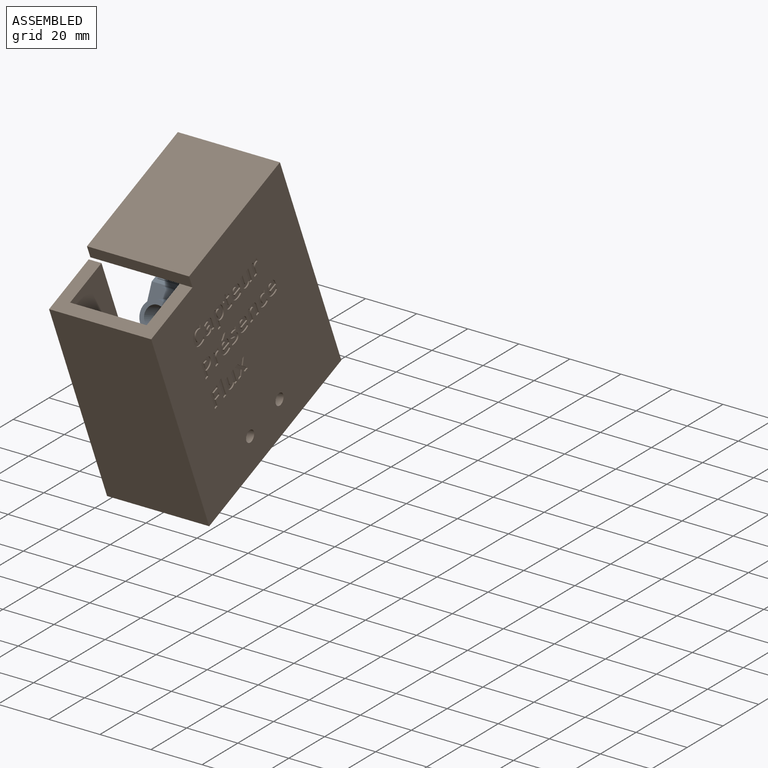
[diagram: assembled view]
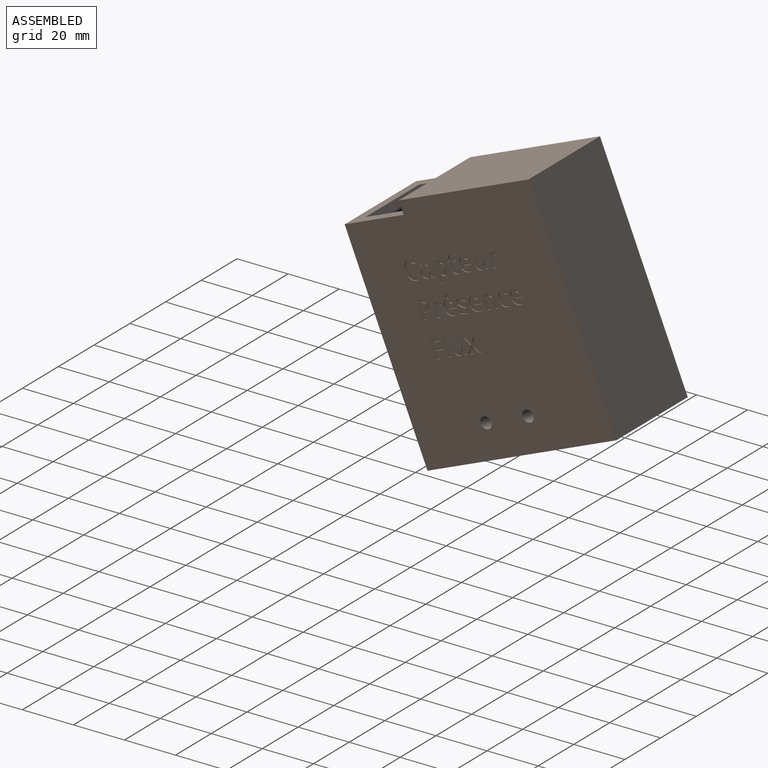
[diagram: assembled view, second angle]
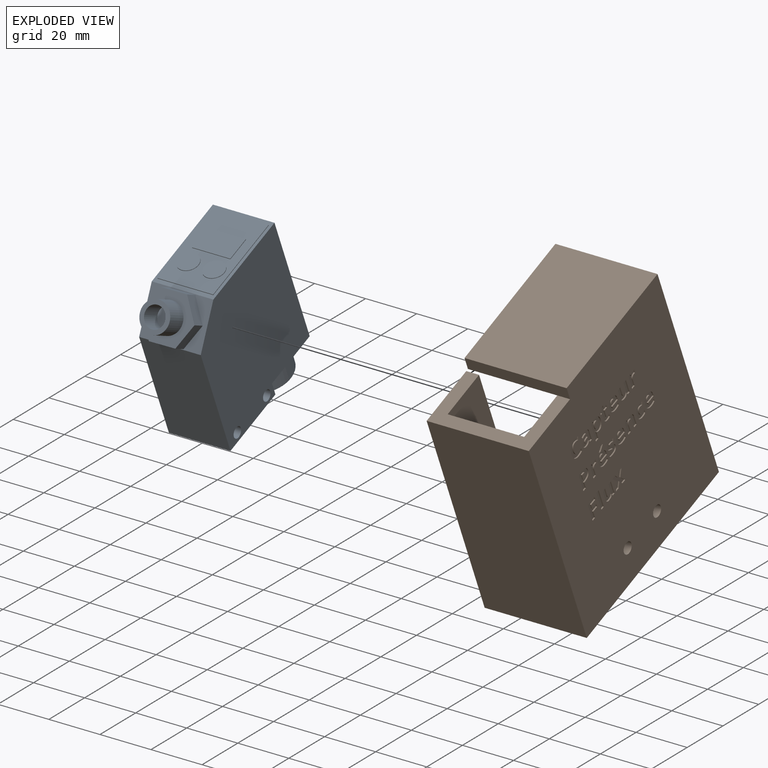
[diagram: exploded view]
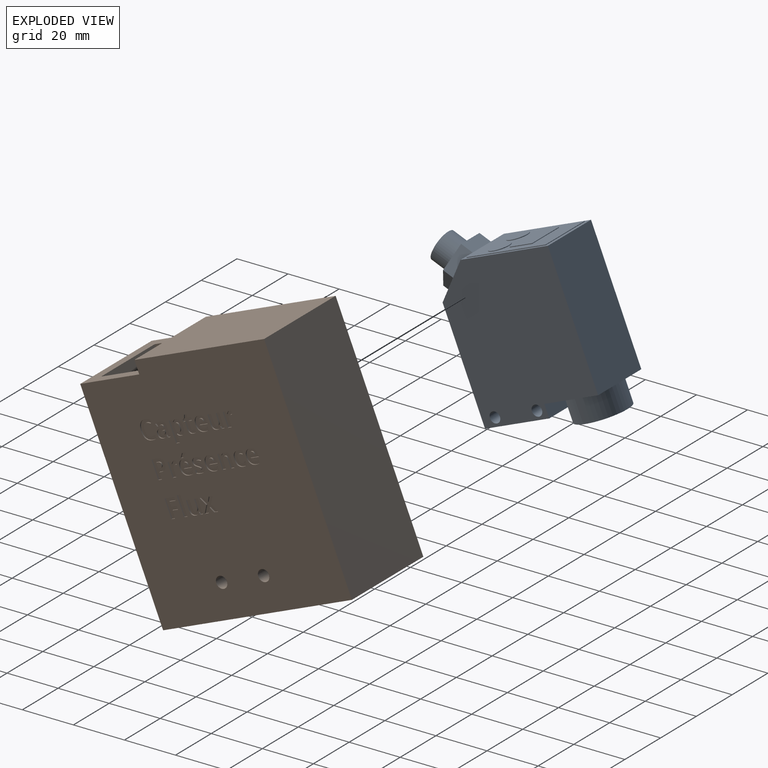
[diagram: exploded view, second angle]
ASSEMBLY  parts=2 mates=3
PART A: 40 faces, bbox 24.1x67.8x56.8 mm
  f0: plane 24.13x13mm, normal (0,-0.71,-0.71), area 166.1mm2, adj f1,f2,f7,f8,f29,f30,f31,f32
  f1: plane 37x24.13mm, normal (0,-1,0), area 160.9mm2, adj f0,f6,f7,f8,f16,f17,f18,f19
  f2: plane 43.57x24.13mm, normal (0,0,-1), area 1051.2mm2, adj f0,f3,f7,f8
  f3: plane 27.2x24.13mm, normal (0,1,0), area 656.3mm2, adj f2,f4,f7,f8
  f4: plane 24.13x5mm, normal (0,0,1), area 120.6mm2, adj f3,f5,f7,f8
  f5: plane 24.13x22.8mm, normal (0,1,0), area 223.3mm2, adj f4,f6,f7,f8,f9
  f6: plane 51.57x24.13mm, normal (0,0,1), area 1244.3mm2, adj f1,f5,f7,f8
  f7: plane 56.57x50mm, normal (1,0,0), area 2602.1mm2, adj f0,f1,f2,f3,f4,f5,f6,f13
  f8: plane 56.57x50mm, normal (-1,0,0), area 2602.1mm2, adj f0,f1,f2,f3,f4,f5,f6,f13
  f9: cylinder r=10.2mm len=20.4mm, axis (0,-1,0), area 602.4mm2, adj f5,f10
  f10: plane 20.4x20.4mm, normal (0,1,0), area 80.8mm2, adj f9,f11
  f11: cylinder r=8.85mm len=17.7mm, axis (0,1,0), area 278mm2, adj f10,f12
  f12: plane 17.7x17.7mm, normal (0,1,0), area 246.1mm2, adj f11
  f13: cylinder r=2.1mm len=24.13mm, axis (1,0,0), area 318.4mm2, adj f7,f8
  f14: cylinder r=2.1mm len=24.13mm, axis (1,0,0), area 318.4mm2, adj f7,f8
  f15: plane 33.5x21.85mm, normal (0,-1,0), area 488.8mm2, adj f16,f17,f18,f19,f21,f23,f25,f26
  f16: plane 21.85x0.25mm, normal (0,0,-1), area 5.5mm2, adj f1,f15,f17,f19
  f17: plane 33.5x0.25mm, normal (1,0,0), area 8.4mm2, adj f1,f15,f16,f18
  f18: plane 21.85x0.25mm, normal (0,0,1), area 5.5mm2, adj f1,f15,f17,f19
  f19: plane 33.5x0.25mm, normal (-1,0,0), area 8.4mm2, adj f1,f15,f16,f18
  f20: plane 8x8mm, normal (0,-1,0), area 50.3mm2, adj f21
  f21: cylinder r=4mm len=8mm, axis (0,1,0), area 6.3mm2, adj f15,f20
  f22: plane 8x8mm, normal (0,-1,0), area 50.3mm2, adj f23
  f23: cylinder r=4mm len=8mm, axis (0,1,0), area 6.3mm2, adj f15,f22
  f24: plane 15x9.5mm, normal (0,-1,0), area 142.5mm2, adj f25,f26,f27,f28
  f25: plane 9.5x0.25mm, normal (-1,0,0), area 2.4mm2, adj f15,f24,f26,f28
  f26: plane 15x0.25mm, normal (0,0,1), area 3.8mm2, adj f15,f24,f25,f27
  f27: plane 9.5x0.25mm, normal (1,0,0), area 2.4mm2, adj f15,f24,f26,f28
  f28: plane 15x0.25mm, normal (0,0,-1), area 3.8mm2, adj f15,f24,f25,f27
  f29: plane 10.33x3.61mm, normal (0.01,0.71,-0.71), area 51.7mm2, adj f0,f30,f34,f35
  f30: plane 9.9x9.9mm, normal (0.87,0.35,-0.35), area 51.7mm2, adj f0,f29,f31,f35
  f31: plane 9.83x9.83mm, normal (0.86,-0.36,0.36), area 51.7mm2, adj f0,f30,f32,f35
  f32: plane 10.33x3.61mm, normal (-0.01,-0.71,0.71), area 51.7mm2, adj f0,f31,f33,f35
  f33: plane 9.9x9.9mm, normal (-0.87,-0.35,0.35), area 51.7mm2, adj f0,f32,f34,f35
  f34: plane 9.83x9.83mm, normal (-0.86,0.36,-0.36), area 51.7mm2, adj f0,f29,f33,f35
  f35: plane 20.67x12.73mm, normal (0,-0.71,-0.71), area 170mm2, adj f29,f30,f31,f32,f33,f34,f37
  f36: cylinder r=4.1mm len=11.46mm, axis (0,0.71,0.71), area 206.1mm2, adj f38,f39
  f37: cylinder r=5.85mm len=13.93mm, axis (0,0.71,0.71), area 294.1mm2, adj f35,f38
  f38: plane 11.7x8.27mm, normal (0,-0.71,-0.71), area 54.7mm2, adj f36,f37
  f39: plane 8.2x5.8mm, normal (0,-0.71,-0.71), area 52.8mm2, adj f36
PART B: 371 faces, bbox 40x90x80 mm
  f0: plane 40x25mm, normal (0,-1,0), area 395mm2, adj f1,f4,f5,f8,f9,f10,f11,f369
  f1: plane 90x80mm, normal (1,0,0), area 6713.5mm2, adj f0,f3,f5,f6,f12,f13,f14,f15
  f2: plane 70x35mm, normal (0,-1,0), area 2355mm2, adj f4,f7,f8,f9,f10,f11
  f3: plane 90x40mm, normal (0,0,1), area 3600mm2, adj f1,f4,f6,f370
  f4: plane 90x80mm, normal (-1,0,0), area 2995mm2, adj f0,f2,f3,f5,f6,f7,f11,f368
  f5: plane 85x40mm, normal (0,0,-1), area 3400mm2, adj f0,f1,f4,f6
  f6: plane 80x40mm, normal (0,1,0), area 3200mm2, adj f1,f3,f4,f5
  f7: plane 80x35mm, normal (0,0,-1), area 2800mm2, adj f2,f4,f8,f368
  f8: plane 80x70mm, normal (-1,0,0), area 5568.2mm2, adj f0,f2,f7,f9,f12,f13,f368
  f9: plane 80x30mm, normal (0,0,1), area 2400mm2, adj f0,f2,f8,f10
  f10: plane 80x19mm, normal (1,0,0), area 1520mm2, adj f0,f2,f9,f11
  f11: plane 80x5mm, normal (0,0,1), area 400mm2, adj f0,f2,f4,f10
  f12: cylinder r=2.25mm len=5mm, axis (1,0,0), area 70.7mm2, adj f1,f8
  f13: cylinder r=2.25mm len=5mm, axis (1,0,0), area 70.7mm2, adj f1,f8
  f14: extruded ~1.31x0.64mm, area 0.8mm2, adj f1,f15,f28,f29
  f15: extruded ~0.79x0.5mm, area 0.4mm2, adj f1,f14,f16,f29
  f16: extruded ~0.8x0.5mm, area 0.4mm2, adj f1,f15,f17,f29
  f17: plane 1.22x0.5mm, normal (0,-0.37,-0.93), area 0.7mm2, adj f1,f16,f18,f29
  f18: extruded ~2.07x0.5mm, area 1.1mm2, adj f1,f17,f19,f29
  f19: extruded ~1.76x0.5mm, area 0.9mm2, adj f1,f18,f20,f29
  f20: extruded ~1.27x1.15mm, area 0.9mm2, adj f1,f19,f21,f29
  f21: extruded ~1.93x0.5mm, area 1mm2, adj f1,f20,f22,f29
  f22: extruded ~2.69x0.82mm, area 1.4mm2, adj f1,f21,f23,f29
  f23: extruded ~2.36x0.94mm, area 1.3mm2, adj f1,f22,f24,f29
  f24: extruded ~1.94x0.5mm, area 1mm2, adj f1,f23,f25,f29
  f25: plane 1.26x0.5mm, normal (0,0,-1), area 0.6mm2, adj f1,f24,f26,f29
  f26: extruded ~1.8x0.5mm, area 0.9mm2, adj f1,f25,f27,f29
  f27: extruded ~2.36x1.77mm, area 1.7mm2, adj f1,f26,f28,f29
  f28: extruded ~1.77x0.5mm, area 0.9mm2, adj f1,f14,f27,f29
  f29: plane 7.27x5.39mm, normal (1,0,0), area 17.5mm2, adj f14,f15,f16,f17,f18,f19,f20,f21
  f30: extruded ~2.04x0.72mm, area 1.1mm2, adj f1,f31,f49,f50
  f31: extruded ~1.07x0.5mm, area 0.5mm2, adj f1,f30,f32,f50
  f32: extruded ~0.83x0.5mm, area 0.4mm2, adj f1,f31,f33,f50
  f33: plane 1.14x0.5mm, normal (0,0,-1), area 0.6mm2, adj f1,f32,f34,f50
  f34: extruded ~0.91x0.5mm, area 0.5mm2, adj f1,f33,f35,f50
  f35: extruded ~0.92x0.5mm, area 0.5mm2, adj f1,f34,f36,f50
  f36: extruded ~0.98x0.5mm, area 0.5mm2, adj f1,f35,f37,f50
  f37: extruded ~0.98x0.5mm, area 0.5mm2, adj f1,f36,f38,f50
  f38: plane 3.49x0.5mm, normal (0,-1,0), area 1.7mm2, adj f1,f37,f39,f50
  f39: plane 0.72x0.5mm, normal (0,0,-1), area 0.4mm2, adj f1,f38,f40,f50
  f40: extruded ~1.8x0.64mm, area 1mm2, adj f1,f39,f41,f50
  f41: extruded ~1.78x0.65mm, area 1mm2, adj f1,f40,f42,f50
  f42: extruded ~1.88x0.74mm, area 1mm2, adj f1,f41,f43,f50
  f43: extruded ~2.1x0.68mm, area 1.1mm2, adj f1,f42,f49,f50
  f44: extruded ~0.74x0.5mm, area 0.4mm2, adj f45,f48,f50,f51
  f45: extruded ~0.74x0.5mm, area 0.4mm2, adj f44,f46,f50,f51
  f46: extruded ~0.84x0.5mm, area 0.5mm2, adj f45,f47,f50,f51
  f47: plane 2.07x0.5mm, normal (0,1,0), area 1mm2, adj f46,f48,f50,f51
  f48: extruded ~0.84x0.5mm, area 0.5mm2, adj f44,f47,f50,f51
  f49: extruded ~2.04x0.74mm, area 1.1mm2, adj f1,f30,f43,f50
  f50: plane 5.6x4.98mm, normal (1,0,0), area 17.6mm2, adj f30,f31,f32,f33,f34,f35,f36,f37
  f51: plane 2.07x1.14mm, normal (1,0,0), area 1.9mm2, adj f44,f45,f46,f47,f48
  f52: extruded ~2.04x0.72mm, area 1.1mm2, adj f1,f53,f71,f72
  f53: extruded ~1.07x0.5mm, area 0.5mm2, adj f1,f52,f54,f72
  f54: extruded ~0.83x0.5mm, area 0.4mm2, adj f1,f53,f55,f72
  f55: plane 1.14x0.5mm, normal (0,0,-1), area 0.6mm2, adj f1,f54,f56,f72
  f56: extruded ~0.91x0.5mm, area 0.5mm2, adj f1,f55,f57,f72
  f57: extruded ~0.92x0.5mm, area 0.5mm2, adj f1,f56,f58,f72
  f58: extruded ~0.98x0.5mm, area 0.5mm2, adj f1,f57,f59,f72
  f59: extruded ~0.98x0.5mm, area 0.5mm2, adj f1,f58,f60,f72
  f60: plane 3.49x0.5mm, normal (0,-1,0), area 1.7mm2, adj f1,f59,f61,f72
  f61: plane 0.72x0.5mm, normal (0,0,-1), area 0.4mm2, adj f1,f60,f62,f72
  f62: extruded ~1.8x0.64mm, area 1mm2, adj f1,f61,f63,f72
  f63: extruded ~1.78x0.65mm, area 1mm2, adj f1,f62,f64,f72
  f64: extruded ~1.88x0.74mm, area 1mm2, adj f1,f63,f65,f72
  f65: extruded ~2.1x0.68mm, area 1.1mm2, adj f1,f64,f71,f72
  f66: extruded ~0.74x0.5mm, area 0.4mm2, adj f67,f70,f72,f73
  f67: extruded ~0.74x0.5mm, area 0.4mm2, adj f66,f68,f72,f73
  f68: extruded ~0.84x0.5mm, area 0.5mm2, adj f67,f69,f72,f73
  f69: plane 2.07x0.5mm, normal (0,1,0), area 1mm2, adj f68,f70,f72,f73
  f70: extruded ~0.84x0.5mm, area 0.5mm2, adj f66,f69,f72,f73
  f71: extruded ~2.04x0.74mm, area 1.1mm2, adj f1,f52,f65,f72
  f72: plane 5.6x4.98mm, normal (1,0,0), area 17.6mm2, adj f52,f53,f54,f55,f56,f57,f58,f59
  f73: plane 2.07x1.14mm, normal (1,0,0), area 1.9mm2, adj f66,f67,f68,f69,f70
  f74: extruded ~2.04x0.72mm, area 1.1mm2, adj f1,f75,f93,f94
  f75: extruded ~1.07x0.5mm, area 0.5mm2, adj f1,f74,f76,f94
  f76: extruded ~0.83x0.5mm, area 0.4mm2, adj f1,f75,f77,f94
  f77: plane 1.14x0.5mm, normal (0,0,-1), area 0.6mm2, adj f1,f76,f78,f94
  f78: extruded ~0.91x0.5mm, area 0.5mm2, adj f1,f77,f79,f94
  f79: extruded ~0.92x0.5mm, area 0.5mm2, adj f1,f78,f80,f94
  f80: extruded ~0.98x0.5mm, area 0.5mm2, adj f1,f79,f81,f94
  f81: extruded ~0.98x0.5mm, area 0.5mm2, adj f1,f80,f82,f94
  f82: plane 3.49x0.5mm, normal (0,-1,0), area 1.7mm2, adj f1,f81,f83,f94
  f83: plane 0.72x0.5mm, normal (0,0,-1), area 0.4mm2, adj f1,f82,f84,f94
  f84: extruded ~1.8x0.64mm, area 1mm2, adj f1,f83,f85,f94
  f85: extruded ~1.78x0.65mm, area 1mm2, adj f1,f84,f86,f94
  f86: extruded ~1.88x0.74mm, area 1mm2, adj f1,f85,f87,f94
  f87: extruded ~2.1x0.68mm, area 1.1mm2, adj f1,f86,f93,f94
  f88: extruded ~0.74x0.5mm, area 0.4mm2, adj f89,f92,f94,f95
  f89: extruded ~0.74x0.5mm, area 0.4mm2, adj f88,f90,f94,f95
  f90: extruded ~0.84x0.5mm, area 0.5mm2, adj f89,f91,f94,f95
  f91: plane 2.07x0.5mm, normal (0,1,0), area 1mm2, adj f90,f92,f94,f95
  f92: extruded ~0.84x0.5mm, area 0.5mm2, adj f88,f91,f94,f95
  f93: extruded ~2.04x0.74mm, area 1.1mm2, adj f1,f74,f87,f94
  f94: plane 5.6x4.98mm, normal (1,0,0), area 17.6mm2, adj f74,f75,f76,f77,f78,f79,f80,f81
  f95: plane 2.07x1.14mm, normal (1,0,0), area 1.9mm2, adj f88,f89,f90,f91,f92
  f96: extruded ~2.77x2.52mm, area 2.1mm2, adj f1,f97,f109,f110
  f97: extruded ~0.92x0.5mm, area 0.5mm2, adj f1,f96,f98,f110
  f98: extruded ~0.72x0.5mm, area 0.4mm2, adj f1,f97,f99,f110
  f99: plane 1.26x0.5mm, normal (0,0,-1), area 0.6mm2, adj f1,f98,f100,f110
  f100: extruded ~0.73x0.5mm, area 0.4mm2, adj f1,f99,f101,f110
  f101: extruded ~0.79x0.5mm, area 0.4mm2, adj f1,f100,f102,f110
  f102: extruded ~1.59x1.15mm, area 1.1mm2, adj f1,f101,f103,f110
  f103: extruded ~1.64x1.15mm, area 1.1mm2, adj f1,f102,f104,f110
  f104: extruded ~0.6x0.5mm, area 0.3mm2, adj f1,f103,f105,f110
  f105: extruded ~0.65x0.5mm, area 0.3mm2, adj f1,f104,f106,f110
  f106: plane 1.14x0.5mm, normal (0,-0.36,-0.93), area 0.6mm2, adj f1,f105,f107,f110
  f107: extruded ~1.68x0.5mm, area 0.9mm2, adj f1,f106,f108,f110
  f108: extruded ~1.97x0.73mm, area 1.1mm2, adj f1,f107,f109,f110
  f109: extruded ~2.11x0.69mm, area 1.1mm2, adj f1,f96,f108,f110
  f110: plane 5.6x4.34mm, normal (1,0,0), area 13mm2, adj f96,f97,f98,f99,f100,f101,f102,f103
  f111: plane 1.47x0.5mm, normal (0,-1,0), area 0.7mm2, adj f1,f112,f127,f128
  f112: plane 3.52x0.5mm, normal (0,0,-1), area 1.8mm2, adj f1,f111,f113,f128
  f113: extruded ~1.47x0.5mm, area 0.8mm2, adj f1,f112,f114,f128
  f114: extruded ~1.43x0.51mm, area 0.8mm2, adj f1,f113,f115,f128
  f115: extruded ~0.98x0.5mm, area 0.5mm2, adj f1,f114,f116,f128
  f116: extruded ~0.68x0.59mm, area 0.5mm2, adj f1,f115,f117,f128
  f117: plane 0.5x0.08mm, normal (0,1,0), area 0mm2, adj f1,f116,f118,f128
  f118: plane 0.69x0.5mm, normal (0,0.28,-0.96), area 0.4mm2, adj f1,f117,f119,f128
  f119: plane 1.13x0.5mm, normal (0,1,0), area 0.6mm2, adj f1,f118,f120,f128
  f120: plane 5.41x0.5mm, normal (0,0,1), area 2.7mm2, adj f1,f119,f121,f128
  f121: plane 1.47x0.5mm, normal (0,-1,0), area 0.7mm2, adj f1,f120,f122,f128
  f122: plane 2.54x0.5mm, normal (0,0,-1), area 1.3mm2, adj f1,f121,f123,f128
  f123: extruded ~1.37x0.5mm, area 0.7mm2, adj f1,f122,f124,f128
  f124: extruded ~0.89x0.5mm, area 0.5mm2, adj f1,f123,f125,f128
  f125: extruded ~0.66x0.5mm, area 0.4mm2, adj f1,f124,f126,f128
  f126: extruded ~0.88x0.5mm, area 0.5mm2, adj f1,f125,f127,f128
  f127: plane 3.16x0.5mm, normal (0,0,1), area 1.6mm2, adj f1,f111,f126,f128
  f128: plane 5.51x4.99mm, normal (1,0,0), area 17.8mm2, adj f111,f112,f113,f114,f115,f116,f117,f118
  f129: extruded ~1.27x0.58mm, area 0.7mm2, adj f1,f130,f154,f155
  f130: extruded ~0.69x0.5mm, area 0.4mm2, adj f1,f129,f131,f155
  f131: extruded ~0.51x0.5mm, area 0.3mm2, adj f1,f130,f132,f155
  f132: extruded ~0.93x0.5mm, area 0.5mm2, adj f1,f131,f133,f155
  f133: extruded ~0.92x0.5mm, area 0.5mm2, adj f1,f132,f134,f155
  f134: extruded ~0.5x0.34mm, area 0.2mm2, adj f1,f133,f135,f155
  f135: extruded ~0.65x0.5mm, area 0.4mm2, adj f1,f134,f136,f155
  f136: extruded ~0.72x0.5mm, area 0.4mm2, adj f1,f135,f137,f155
  f137: extruded ~0.76x0.5mm, area 0.4mm2, adj f1,f136,f138,f155
  f138: plane 1.06x0.5mm, normal (0,-0.39,-0.92), area 0.6mm2, adj f1,f137,f139,f155
  f139: extruded ~1.9x0.5mm, area 1mm2, adj f1,f138,f140,f155
  f140: extruded ~1.58x0.5mm, area 0.8mm2, adj f1,f139,f141,f155
  f141: extruded ~1.11x0.56mm, area 0.7mm2, adj f1,f140,f142,f155
  f142: extruded ~0.71x0.5mm, area 0.4mm2, adj f1,f141,f143,f155
  f143: extruded ~0.51x0.5mm, area 0.3mm2, adj f1,f142,f144,f155
  f144: extruded ~0.92x0.5mm, area 0.5mm2, adj f1,f143,f145,f155
  f145: extruded ~0.7x0.5mm, area 0.4mm2, adj f1,f144,f146,f155
  f146: extruded ~0.5x0.37mm, area 0.2mm2, adj f1,f145,f147,f155
  f147: extruded ~0.5x0.28mm, area 0.2mm2, adj f1,f146,f148,f155
  f148: extruded ~0.8x0.5mm, area 0.5mm2, adj f1,f147,f149,f155
  f149: extruded ~0.91x0.5mm, area 0.5mm2, adj f1,f148,f150,f155
  f150: extruded ~0.93x0.5mm, area 0.5mm2, adj f1,f149,f151,f155
  f151: plane 1.22x0.5mm, normal (0,0,1), area 0.6mm2, adj f1,f150,f152,f155
  f152: extruded ~0.78x0.5mm, area 0.4mm2, adj f1,f151,f153,f155
  f153: extruded ~1.01x0.5mm, area 0.5mm2, adj f1,f152,f154,f155
  f154: extruded ~1.73x0.5mm, area 0.9mm2, adj f1,f129,f153,f155
  f155: plane 5.6x4.1mm, normal (1,0,0), area 14.6mm2, adj f129,f130,f131,f132,f133,f134,f135,f136
  f156: plane 0.5x0.13mm, normal (0,0,1), area 0.1mm2, adj f1,f157,f162,f163
  f157: plane 0.98x0.5mm, normal (0,-1,0), area 0.5mm2, adj f1,f156,f158,f163
  f158: extruded ~0.95x0.74mm, area 0.6mm2, adj f1,f157,f159,f163
  f159: extruded ~0.86x0.75mm, area 0.6mm2, adj f1,f158,f160,f163
  f160: plane 0.5x0.1mm, normal (0,0,-1), area 0.1mm2, adj f1,f159,f161,f163
  f161: plane 1.65x0.5mm, normal (0,1,0), area 0.8mm2, adj f1,f160,f162,f163
  f162: extruded ~1.45x1.14mm, area 0.9mm2, adj f1,f156,f161,f163
  f163: plane 2.79x1.59mm, normal (1,0,0), area 2.3mm2, adj f156,f157,f158,f159,f160,f161,f162
  f164: extruded ~0.93x0.5mm, area 0.5mm2, adj f1,f165,f181,f182
  f165: extruded ~0.5x0.47mm, area 0.3mm2, adj f1,f164,f166,f182
  f166: extruded ~0.5x0.46mm, area 0.3mm2, adj f1,f165,f167,f182
  f167: plane 2.61x0.5mm, normal (0,0,-1), area 1.3mm2, adj f1,f166,f168,f182
  f168: plane 1.51x0.5mm, normal (0,-1,0), area 0.8mm2, adj f1,f167,f169,f182
  f169: plane 1.11x0.5mm, normal (0,0,-1), area 0.6mm2, adj f1,f168,f170,f182
  f170: plane 1.51x0.5mm, normal (0,1,0), area 0.8mm2, adj f1,f169,f171,f182
  f171: plane 1.15x0.5mm, normal (0,0,-1), area 0.6mm2, adj f1,f170,f172,f182
  f172: plane 0.94x0.5mm, normal (0,1,0), area 0.5mm2, adj f1,f171,f173,f182
  f173: plane 1.14x0.5mm, normal (0,0.35,0.94), area 0.6mm2, adj f1,f172,f174,f182
  f174: plane 0.81x0.5mm, normal (0,0.85,0.52), area 0.5mm2, adj f1,f173,f175,f182
  f175: plane 0.62x0.5mm, normal (0,0,1), area 0.3mm2, adj f1,f174,f176,f182
  f176: plane 0.71x0.5mm, normal (0,-1,0), area 0.4mm2, adj f1,f175,f177,f182
  f177: plane 2.61x0.5mm, normal (0,0,1), area 1.3mm2, adj f1,f176,f178,f182
  f178: extruded ~1.34x0.5mm, area 0.7mm2, adj f1,f177,f179,f182
  f179: extruded ~1.29x0.5mm, area 0.7mm2, adj f1,f178,f180,f182
  f180: extruded ~1.35x0.5mm, area 0.7mm2, adj f1,f179,f181,f182
  f181: plane 1.1x0.5mm, normal (0,0,-1), area 0.5mm2, adj f1,f164,f180,f182
  f182: plane 6.65x3.75mm, normal (1,0,0), area 13.1mm2, adj f164,f165,f166,f167,f168,f169,f170,f171
  f183: plane 0.69x0.5mm, normal (0,-0.28,0.96), area 0.4mm2, adj f1,f184,f199,f200
  f184: plane 1.13x0.5mm, normal (0,-1,0), area 0.6mm2, adj f1,f183,f185,f200
  f185: plane 5.41x0.5mm, normal (0,0,-1), area 2.7mm2, adj f1,f184,f186,f200
  f186: plane 1.47x0.5mm, normal (0,1,0), area 0.7mm2, adj f1,f185,f187,f200
  f187: plane 2.54x0.5mm, normal (0,0,1), area 1.3mm2, adj f1,f186,f188,f200
  f188: extruded ~1.37x0.5mm, area 0.7mm2, adj f1,f187,f189,f200
  f189: extruded ~0.89x0.5mm, area 0.5mm2, adj f1,f188,f190,f200
  f190: extruded ~0.66x0.5mm, area 0.4mm2, adj f1,f189,f191,f200
  f191: extruded ~0.88x0.5mm, area 0.5mm2, adj f1,f190,f192,f200
  f192: plane 3.16x0.5mm, normal (0,0,-1), area 1.6mm2, adj f1,f191,f193,f200
  f193: plane 1.47x0.5mm, normal (0,1,0), area 0.7mm2, adj f1,f192,f194,f200
  f194: plane 3.52x0.5mm, normal (0,0,1), area 1.8mm2, adj f1,f193,f195,f200
  f195: extruded ~1.47x0.5mm, area 0.8mm2, adj f1,f194,f196,f200
  f196: extruded ~1.44x0.51mm, area 0.8mm2, adj f1,f195,f197,f200
  f197: extruded ~0.99x0.5mm, area 0.5mm2, adj f1,f196,f198,f200
  f198: extruded ~0.67x0.58mm, area 0.5mm2, adj f1,f197,f199,f200
  f199: plane 0.5x0.08mm, normal (0,-1,0), area 0mm2, adj f1,f183,f198,f200
  f200: plane 5.5x4.99mm, normal (1,0,0), area 17.8mm2, adj f183,f184,f185,f186,f187,f188,f189,f190
  f201: extruded ~0.5x0.5mm, area 0.3mm2, adj f1,f202,f213,f214
  f202: extruded ~0.93x0.5mm, area 0.5mm2, adj f1,f201,f203,f214
  f203: extruded ~0.73x0.68mm, area 0.5mm2, adj f1,f202,f204,f214
  f204: plane 0.5x0.07mm, normal (0,1,0), area 0mm2, adj f1,f203,f205,f214
  f205: plane 0.91x0.5mm, normal (0,0.23,-0.97), area 0.5mm2, adj f1,f204,f206,f214
  f206: plane 1.12x0.5mm, normal (0,1,0), area 0.6mm2, adj f1,f205,f207,f214
  f207: plane 5.41x0.5mm, normal (0,0,1), area 2.7mm2, adj f1,f206,f208,f214
  f208: plane 1.47x0.5mm, normal (0,-1,0), area 0.7mm2, adj f1,f207,f209,f214
  f209: plane 2.75x0.5mm, normal (0,0,-1), area 1.4mm2, adj f1,f208,f210,f214
  f210: extruded ~1.02x0.5mm, area 0.6mm2, adj f1,f209,f211,f214
  f211: extruded ~1.1x0.5mm, area 0.6mm2, adj f1,f210,f212,f214
  f212: extruded ~0.5x0.43mm, area 0.2mm2, adj f1,f211,f213,f214
  f213: plane 1.38x0.5mm, normal (0,-0.08,-1), area 0.7mm2, adj f1,f201,f212,f214
  f214: plane 5.51x3.52mm, normal (1,0,0), area 10.4mm2, adj f201,f202,f203,f204,f205,f206,f207,f208
  f215: extruded ~0.5x0.5mm, area 0.3mm2, adj f1,f216,f227,f228
  f216: extruded ~0.93x0.5mm, area 0.5mm2, adj f1,f215,f217,f228
  f217: extruded ~0.73x0.68mm, area 0.5mm2, adj f1,f216,f218,f228
  f218: plane 0.5x0.07mm, normal (0,1,0), area 0mm2, adj f1,f217,f219,f228
  f219: plane 0.91x0.5mm, normal (0,0.23,-0.97), area 0.5mm2, adj f1,f218,f220,f228
  f220: plane 1.12x0.5mm, normal (0,1,0), area 0.6mm2, adj f1,f219,f221,f228
  f221: plane 5.41x0.5mm, normal (0,0,1), area 2.7mm2, adj f1,f220,f222,f228
  f222: plane 1.47x0.5mm, normal (0,-1,0), area 0.7mm2, adj f1,f221,f223,f228
  f223: plane 2.75x0.5mm, normal (0,0,-1), area 1.4mm2, adj f1,f222,f224,f228
  f224: extruded ~1.02x0.5mm, area 0.6mm2, adj f1,f223,f225,f228
  f225: extruded ~1.1x0.5mm, area 0.6mm2, adj f1,f224,f226,f228
  f226: extruded ~0.5x0.43mm, area 0.2mm2, adj f1,f225,f227,f228
  f227: plane 1.38x0.5mm, normal (0,-0.08,-1), area 0.7mm2, adj f1,f215,f226,f228
  f228: plane 5.51x3.52mm, normal (1,0,0), area 10.4mm2, adj f215,f216,f217,f218,f219,f220,f221,f222
  f229: plane 1.47x0.5mm, normal (0,-1,0), area 0.7mm2, adj f1,f230,f238,f239
  f230: plane 2.79x0.5mm, normal (0,0,-1), area 1.4mm2, adj f1,f229,f231,f239
  f231: plane 2.4x0.5mm, normal (0,-1,0), area 1.2mm2, adj f1,f230,f232,f239
  f232: plane 1.22x0.5mm, normal (0,0,-1), area 0.6mm2, adj f1,f231,f233,f239
  f233: plane 2.4x0.5mm, normal (0,1,0), area 1.2mm2, adj f1,f232,f234,f239
  f234: plane 1.82x0.5mm, normal (0,0,-1), area 0.9mm2, adj f1,f233,f235,f239
  f235: plane 2.58x0.5mm, normal (0,-1,0), area 1.3mm2, adj f1,f234,f236,f239
  f236: plane 1.23x0.5mm, normal (0,0,-1), area 0.6mm2, adj f1,f235,f237,f239
  f237: plane 4.05x0.5mm, normal (0,1,0), area 2mm2, adj f1,f236,f238,f239
  f238: plane 7.07x0.5mm, normal (0,0,1), area 3.5mm2, adj f1,f229,f237,f239
  f239: plane 7.07x4.05mm, normal (1,0,0), area 16.5mm2, adj f229,f230,f231,f232,f233,f234,f235,f236
  f240: plane 1.47x0.5mm, normal (0,-1,0), area 0.7mm2, adj f1,f241,f243,f244
  f241: plane 7.52x0.5mm, normal (0,0,-1), area 3.8mm2, adj f1,f240,f242,f244
  f242: plane 1.47x0.5mm, normal (0,1,0), area 0.7mm2, adj f1,f241,f243,f244
  f243: plane 7.52x0.5mm, normal (0,0,1), area 3.8mm2, adj f1,f240,f242,f244
  f244: plane 7.52x1.47mm, normal (1,0,0), area 11.1mm2, adj f240,f241,f242,f243
  f245: plane 0.69x0.5mm, normal (0,-0.28,0.96), area 0.4mm2, adj f1,f246,f261,f262
  f246: plane 1.13x0.5mm, normal (0,-1,0), area 0.6mm2, adj f1,f245,f247,f262
  f247: plane 5.41x0.5mm, normal (0,0,-1), area 2.7mm2, adj f1,f246,f248,f262
  f248: plane 1.47x0.5mm, normal (0,1,0), area 0.7mm2, adj f1,f247,f249,f262
  f249: plane 2.54x0.5mm, normal (0,0,1), area 1.3mm2, adj f1,f248,f250,f262
  f250: extruded ~1.37x0.5mm, area 0.7mm2, adj f1,f249,f251,f262
  f251: extruded ~0.89x0.5mm, area 0.5mm2, adj f1,f250,f252,f262
  f252: extruded ~0.66x0.5mm, area 0.4mm2, adj f1,f251,f253,f262
  f253: extruded ~0.88x0.5mm, area 0.5mm2, adj f1,f252,f254,f262
  f254: plane 3.16x0.5mm, normal (0,0,-1), area 1.6mm2, adj f1,f253,f255,f262
  f255: plane 1.47x0.5mm, normal (0,1,0), area 0.7mm2, adj f1,f254,f256,f262
  f256: plane 3.52x0.5mm, normal (0,0,1), area 1.8mm2, adj f1,f255,f257,f262
  f257: extruded ~1.47x0.5mm, area 0.8mm2, adj f1,f256,f258,f262
  f258: extruded ~1.44x0.51mm, area 0.8mm2, adj f1,f257,f259,f262
  f259: extruded ~0.99x0.5mm, area 0.5mm2, adj f1,f258,f260,f262
  f260: extruded ~0.67x0.58mm, area 0.5mm2, adj f1,f259,f261,f262
  f261: plane 0.5x0.08mm, normal (0,-1,0), area 0mm2, adj f1,f245,f260,f262
  f262: plane 5.5x4.99mm, normal (1,0,0), area 17.8mm2, adj f245,f246,f247,f248,f249,f250,f251,f252
  f263: plane 2.65x1.74mm, normal (0,-0.55,0.84), area 1.6mm2, adj f1,f264,f274,f275
  f264: plane 2.76x1.83mm, normal (0,0.55,0.83), area 1.7mm2, adj f1,f263,f265,f275
  f265: plane 1.67x0.5mm, normal (0,-1,0), area 0.8mm2, adj f1,f264,f266,f275
  f266: plane 1.85x1.14mm, normal (0,-0.52,-0.85), area 1.1mm2, adj f1,f265,f267,f275
  f267: plane 1.85x1.14mm, normal (0,-0.52,0.85), area 1.1mm2, adj f1,f266,f268,f275
  f268: plane 1.68x0.5mm, normal (0,-1,0), area 0.8mm2, adj f1,f267,f269,f275
  f269: plane 2.76x1.84mm, normal (0,0.56,-0.83), area 1.7mm2, adj f1,f268,f270,f275
  f270: plane 2.65x1.76mm, normal (0,-0.55,-0.83), area 1.6mm2, adj f1,f269,f271,f275
  f271: plane 1.67x0.5mm, normal (0,1,0), area 0.8mm2, adj f1,f270,f272,f275
  f272: plane 1.72x1.06mm, normal (0,0.52,0.85), area 1mm2, adj f1,f271,f273,f275
  f273: plane 1.72x1.05mm, normal (0,0.52,-0.85), area 1mm2, adj f1,f272,f274,f275
  f274: plane 1.67x0.5mm, normal (0,1,0), area 0.8mm2, adj f1,f263,f273,f275
  f275: plane 5.63x5.41mm, normal (1,0,0), area 16.3mm2, adj f263,f264,f265,f266,f267,f268,f269,f270
  f276: extruded ~1.75x0.71mm, area 1mm2, adj f1,f277,f291,f292
  f277: extruded ~1.65x0.67mm, area 0.9mm2, adj f1,f276,f278,f292
  f278: extruded ~1.96x0.55mm, area 1mm2, adj f1,f277,f279,f292
  f279: plane 2.26x0.5mm, normal (0,1,0), area 1.1mm2, adj f1,f278,f280,f292
  f280: plane 7.07x0.5mm, normal (0,0,1), area 3.5mm2, adj f1,f279,f281,f292
  f281: plane 1.5x0.5mm, normal (0,-1,0), area 0.7mm2, adj f1,f280,f282,f292
  f282: plane 2.51x0.5mm, normal (0,0,-1), area 1.3mm2, adj f1,f281,f283,f292
  f283: plane 0.64x0.5mm, normal (0,-1,0), area 0.3mm2, adj f1,f282,f291,f292
  f284: plane 0.5x0.49mm, normal (0,1,0), area 0.2mm2, adj f285,f290,f292,f293
  f285: plane 2.1x0.5mm, normal (0,0,-1), area 1mm2, adj f284,f286,f292,f293
  f286: plane 0.68x0.5mm, normal (0,-1,0), area 0.3mm2, adj f285,f287,f292,f293
  f287: extruded ~0.9x0.5mm, area 0.5mm2, adj f286,f288,f292,f293
  f288: extruded ~0.78x0.5mm, area 0.4mm2, adj f287,f289,f292,f293
  f289: extruded ~0.79x0.5mm, area 0.4mm2, adj f288,f290,f292,f293
  f290: extruded ~1.03x0.5mm, area 0.5mm2, adj f284,f289,f292,f293
  f291: extruded ~2.03x0.6mm, area 1.1mm2, adj f1,f276,f283,f292
  f292: plane 7.07x4.88mm, normal (1,0,0), area 20.4mm2, adj f276,f277,f278,f279,f280,f281,f282,f283
  f293: plane 2.1x1.87mm, normal (1,0,0), area 3.5mm2, adj f284,f285,f286,f287,f288,f289,f290
  f294: extruded ~2.04x0.72mm, area 1.1mm2, adj f1,f295,f313,f314
  f295: extruded ~1.07x0.5mm, area 0.5mm2, adj f1,f294,f296,f314
  f296: extruded ~0.83x0.5mm, area 0.4mm2, adj f1,f295,f297,f314
  f297: plane 1.14x0.5mm, normal (0,0,-1), area 0.6mm2, adj f1,f296,f298,f314
  f298: extruded ~0.91x0.5mm, area 0.5mm2, adj f1,f297,f299,f314
  f299: extruded ~0.92x0.5mm, area 0.5mm2, adj f1,f298,f300,f314
  f300: extruded ~0.98x0.5mm, area 0.5mm2, adj f1,f299,f301,f314
  f301: extruded ~0.98x0.5mm, area 0.5mm2, adj f1,f300,f302,f314
  f302: plane 3.49x0.5mm, normal (0,-1,0), area 1.7mm2, adj f1,f301,f303,f314
  f303: plane 0.72x0.5mm, normal (0,0,-1), area 0.4mm2, adj f1,f302,f304,f314
  f304: extruded ~1.8x0.64mm, area 1mm2, adj f1,f303,f305,f314
  f305: extruded ~1.78x0.65mm, area 1mm2, adj f1,f304,f306,f314
  f306: extruded ~1.88x0.74mm, area 1mm2, adj f1,f305,f307,f314
  f307: extruded ~2.1x0.68mm, area 1.1mm2, adj f1,f306,f313,f314
  f308: extruded ~0.74x0.5mm, area 0.4mm2, adj f309,f312,f314,f315
  f309: extruded ~0.74x0.5mm, area 0.4mm2, adj f308,f310,f314,f315
  f310: extruded ~0.84x0.5mm, area 0.5mm2, adj f309,f311,f314,f315
  f311: plane 2.07x0.5mm, normal (0,1,0), area 1mm2, adj f310,f312,f314,f315
  f312: extruded ~0.84x0.5mm, area 0.5mm2, adj f308,f311,f314,f315
  f313: extruded ~2.04x0.74mm, area 1.1mm2, adj f1,f294,f307,f314
  f314: plane 5.6x4.98mm, normal (1,0,0), area 17.6mm2, adj f294,f295,f296,f297,f298,f299,f300,f301
  f315: plane 2.07x1.14mm, normal (1,0,0), area 1.9mm2, adj f308,f309,f310,f311,f312
  f316: extruded ~0.8x0.5mm, area 0.5mm2, adj f317,f338,f339,f366
  f317: extruded ~0.77x0.5mm, area 0.5mm2, adj f316,f318,f339,f366
  f318: extruded ~1.2x0.5mm, area 0.6mm2, adj f317,f319,f339,f366
  f319: extruded ~1.64x0.99mm, area 1.1mm2, adj f318,f320,f339,f366
  f320: extruded ~0.82x0.5mm, area 0.5mm2, adj f319,f321,f339,f366
  f321: extruded ~1.25x0.5mm, area 0.6mm2, adj f320,f322,f339,f366
  f322: plane 0.5x0.16mm, normal (0,0,-1), area 0.1mm2, adj f321,f338,f339,f366
  f323: extruded ~1.49x0.69mm, area 0.9mm2, adj f1,f324,f337,f339
  f324: extruded ~1.1x0.5mm, area 0.6mm2, adj f1,f323,f325,f339
  f325: extruded ~0.97x0.72mm, area 0.6mm2, adj f1,f324,f326,f339
  f326: extruded ~1.5x0.5mm, area 0.8mm2, adj f1,f325,f327,f339
  f327: extruded ~2.05x0.54mm, area 1.1mm2, adj f1,f326,f328,f339
  f328: extruded ~1.5x0.74mm, area 0.9mm2, adj f1,f327,f329,f339
  f329: extruded ~1.53x0.8mm, area 0.9mm2, adj f1,f328,f330,f339
  f330: plane 0.5x0.07mm, normal (0,1,0), area 0mm2, adj f1,f329,f331,f339
  f331: plane 0.7x0.5mm, normal (0,0.28,-0.96), area 0.4mm2, adj f1,f330,f332,f339
  f332: plane 1.2x0.5mm, normal (0,1,0), area 0.6mm2, adj f1,f331,f333,f339
  f333: plane 7.79x0.5mm, normal (0,0,1), area 3.9mm2, adj f1,f332,f334,f339
  f334: plane 1.47x0.5mm, normal (0,-1,0), area 0.7mm2, adj f1,f333,f335,f339
  f335: plane 2.19x0.5mm, normal (0,0,-1), area 1.1mm2, adj f1,f334,f336,f339
  f336: extruded ~0.78x0.5mm, area 0.4mm2, adj f1,f335,f337,f339
  f337: plane 0.5x0.08mm, normal (0,-1,0), area 0mm2, adj f1,f323,f336,f339
  f338: extruded ~1.11x0.5mm, area 0.6mm2, adj f316,f322,f339,f366
  f339: plane 7.89x5.05mm, normal (1,0,0), area 22.9mm2, adj f316,f317,f318,f319,f320,f321,f322,f323
  f340: plane 0.57x0.5mm, normal (0,-1,-0.04), area 0.3mm2, adj f341,f364,f365,f367
  f341: plane 0.5x0.45mm, normal (0,0,1), area 0.2mm2, adj f340,f342,f365,f367
  f342: extruded ~0.78x0.5mm, area 0.4mm2, adj f341,f343,f365,f367
  f343: extruded ~0.82x0.5mm, area 0.4mm2, adj f342,f344,f365,f367
  f344: extruded ~0.71x0.63mm, area 0.5mm2, adj f343,f345,f365,f367
  f345: extruded ~0.65x0.5mm, area 0.4mm2, adj f344,f364,f365,f367
  f346: plane 0.74x0.5mm, normal (0,-0.36,0.93), area 0.4mm2, adj f1,f347,f363,f365
  f347: plane 1.03x0.5mm, normal (0,-1,0), area 0.5mm2, adj f1,f346,f348,f365
  f348: plane 3.6x0.5mm, normal (0,0,-1), area 1.8mm2, adj f1,f347,f349,f365
  f349: extruded ~1.44x0.58mm, area 0.8mm2, adj f1,f348,f350,f365
  f350: extruded ~1.67x0.5mm, area 0.9mm2, adj f1,f349,f351,f365
  f351: extruded ~2.07x0.5mm, area 1.1mm2, adj f1,f350,f352,f365
  f352: plane 1x0.5mm, normal (0,-0.44,0.9), area 0.6mm2, adj f1,f351,f353,f365
  f353: extruded ~1.52x0.5mm, area 0.8mm2, adj f1,f352,f354,f365
  f354: extruded ~0.84x0.82mm, area 0.7mm2, adj f1,f353,f355,f365
  f355: plane 0.5x0.24mm, normal (0,0,1), area 0.1mm2, adj f1,f354,f356,f365
  f356: plane 0.94x0.5mm, normal (0,1,0.03), area 0.5mm2, adj f1,f355,f357,f365
  f357: extruded ~1.81x0.5mm, area 0.9mm2, adj f1,f356,f358,f365
  f358: extruded ~1.27x0.6mm, area 0.7mm2, adj f1,f357,f359,f365
  f359: extruded ~1.27x0.5mm, area 0.7mm2, adj f1,f358,f360,f365
  f360: extruded ~1.23x0.5mm, area 0.7mm2, adj f1,f359,f361,f365
  f361: extruded ~1.03x0.5mm, area 0.5mm2, adj f1,f360,f362,f365
  f362: extruded ~0.77x0.65mm, area 0.5mm2, adj f1,f361,f363,f365
  f363: plane 0.5x0.04mm, normal (0,-1,0), area 0mm2, adj f1,f346,f362,f365
  f364: extruded ~0.96x0.5mm, area 0.5mm2, adj f340,f345,f365,f367
  f365: plane 5.61x4.82mm, normal (1,0,0), area 17.9mm2, adj f340,f341,f342,f343,f344,f345,f346,f347
  f366: plane 3.23x2.07mm, normal (1,0,0), area 5.6mm2, adj f316,f317,f318,f319,f320,f321,f322,f338
  f367: plane 1.84x1.52mm, normal (1,0,0), area 2.3mm2, adj f340,f341,f342,f343,f344,f345,f364
  f368: plane 50x35mm, normal (0,1,0), area 1750mm2, adj f4,f7,f8,f369
  f369: plane 40x5mm, normal (0,0,-1), area 200mm2, adj f0,f1,f4,f368,f370
  f370: plane 55x40mm, normal (0,-1,0), area 2200mm2, adj f1,f3,f4,f369
PLACE A rot(axis=(-1,0,0),67.6deg) t=(-28.12,-24.21,-46.22)mm
PLACE B rot(axis=(-1,0,0),67.6deg) t=(-18.99,-17.65,-86.99)mm
MATE planar A.f7 <-> B.f8  axis (1,0,0) through (-3.99,-1.11,-36.68)mm
MATE slider B.f12 <-> A.f13  axis (1,0,0) through (-1.49,-31.7,-79.16)mm
MATE planar A.f9 <-> B.f2  axis (0,0.38,-0.92) through (-16.79,1.79,-73.55)mm
